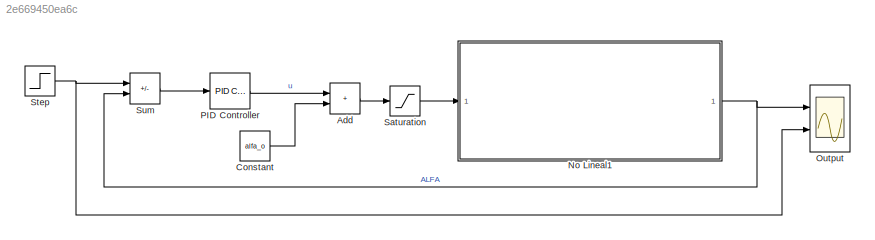
MODEL slx_2e669450ea6c
KIND model
CONFIG AbsTol = auto
CONFIG EnableMultiTasking = off
CONFIG FixedStep = auto
CONFIG MaxStep = auto
CONFIG MinStep = auto
CONFIG RelTol = 1e-3
CONFIG SampleTimeConstraint = Unconstrained
CONFIG SolverName = VariableStepAuto
CONFIG StartTime = 0.0
CONFIG StopTime = 20
BLOCK [Sum] Add
  IconShape = rectangular
  Ports = [2, 1]
BLOCK [Constant] Constant
  Value = alfa_o
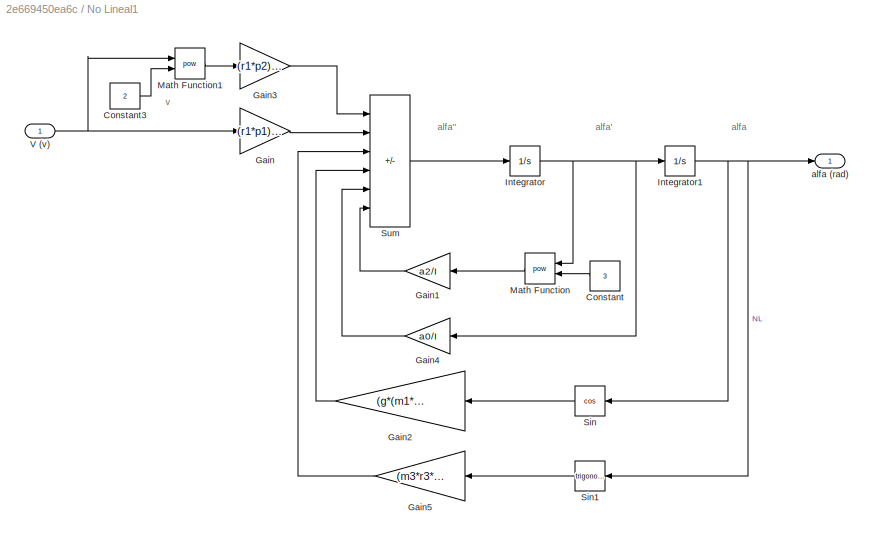
BLOCK [SubSystem] No Lineal1
  NameLocation = top
  Ports = [1, 1]
  RequestExecContextInheritance = off
BLOCK [Constant] No Lineal1/Constant
  Value = 3
BLOCK [Constant] No Lineal1/Constant3
  Value = 2
BLOCK [Gain] No Lineal1/Gain
  Gain = (r1*p1)/I
BLOCK [Gain] No Lineal1/Gain1
  Gain = a2/I
BLOCK [Gain] No Lineal1/Gain2
  Gain = (g*(m1*r1-m2*r2))/I
BLOCK [Gain] No Lineal1/Gain3
  Gain = (r1*p2)/I
BLOCK [Gain] No Lineal1/Gain4
  Gain = a0/I
BLOCK [Gain] No Lineal1/Gain5
  Gain = (m3*r3*g)/I
BLOCK [Integrator] No Lineal1/Integrator
  InitialCondition = alfa_o
  Ports = [1, 1]
BLOCK [Integrator] No Lineal1/Integrator1
  InitialCondition = alfa_o
  Ports = [1, 1]
BLOCK [Math] No Lineal1/Math Function
  Operator = pow
  Ports = [2, 1]
BLOCK [Math] No Lineal1/Math Function1
  Operator = pow
  Ports = [2, 1]
BLOCK [Trigonometry] No Lineal1/Sin
  Operator = cos
  Ports = [1, 1]
BLOCK [Trigonometry] No Lineal1/Sin1
  Ports = [1, 1]
BLOCK [Sum] No Lineal1/Sum
  IconShape = rectangular
  Inputs = ++----
  Ports = [6, 1]
BLOCK [Inport] No Lineal1/V (v)
BLOCK [Outport] No Lineal1/alfa (rad)
BLOCK [Scope] Output
  Floating = off
  NumInputPorts = 2
  Ports = [2]
  ScopeSpecificationString = Simulink.scopes.TimeScopeBlockCfg('CurrentConfiguration', extmgr.ConfigurationSet(extmgr.Configuration('Core','General UI',true),extmgr.Configuration('Core','Source UI',true),extmgr.Configuration('Sources','WiredSimulink',true),extmgr.Configuration('Visuals','Time Domain',true,'SerializedDisplays',{struct('MinYLimReal','-1.9686','MaxYLimReal','5.61328','YLabelReal','','MinYLimMag','0.00000','MaxYL...<+1354ch>
BLOCK [Reference] PID Controller  REF=pid_lib/PID Controller
  Ports = [1, 1]
  SourceBlock = pid_lib/PID Controller
  SourceProductBaseCode = SL
  SourceType = PID 1dof
BLOCK [Saturate] Saturation
  LowerLimit = 0.0
  UpperLimit = 6.0
BLOCK [Step] Step
  After = vo+1
  Before = vo
  SampleTime = 0
  Time = 0
BLOCK [Sum] Sum
  IconShape = rectangular
  Inputs = +-
  Ports = [2, 1]
ANNOTATION No Lineal1: alfa''
ANNOTATION No Lineal1: alfa'
ANNOTATION No Lineal1: alfa
ANNOTATION No Lineal1: v
LINE Add:1 -> Saturation:1
LINE Constant:1 -> Add:2
LINE No Lineal1/Constant3:1 -> No Lineal1/Math Function1:2
LINE No Lineal1/Constant:1 -> No Lineal1/Math Function:2
LINE No Lineal1/Gain1:1 -> No Lineal1/Sum:6
LINE No Lineal1/Gain2:1 -> No Lineal1/Sum:4
LINE No Lineal1/Gain3:1 -> No Lineal1/Sum:1
LINE No Lineal1/Gain4:1 -> No Lineal1/Sum:5
LINE No Lineal1/Gain5:1 -> No Lineal1/Sum:3
LINE No Lineal1/Gain:1 -> No Lineal1/Sum:2
NET No Lineal1/Integrator1:1 -> No Lineal1/Sin1:1, No Lineal1/Sin:1, No Lineal1/alfa (rad):1
NET No Lineal1/Integrator:1 -> No Lineal1/Gain4:1, No Lineal1/Integrator1:1, No Lineal1/Math Function:1
LINE No Lineal1/Math Function1:1 -> No Lineal1/Gain3:1
LINE No Lineal1/Math Function:1 -> No Lineal1/Gain1:1
LINE No Lineal1/Sin1:1 -> No Lineal1/Gain5:1
LINE No Lineal1/Sin:1 -> No Lineal1/Gain2:1
LINE No Lineal1/Sum:1 -> No Lineal1/Integrator:1
NET No Lineal1/V (v):1 -> No Lineal1/Gain:1, No Lineal1/Math Function1:1
NET No Lineal1:1 -> Output:1, Sum:2
LINE PID Controller:1 -> Add:1
LINE Saturation:1 -> No Lineal1:1
NET Step:1 -> Output:2, Sum:1
LINE Sum:1 -> PID Controller:1
note: NET lines group one-source signal fan-out (src -> all destinations, sorted); 1:1 wires keep LINE
